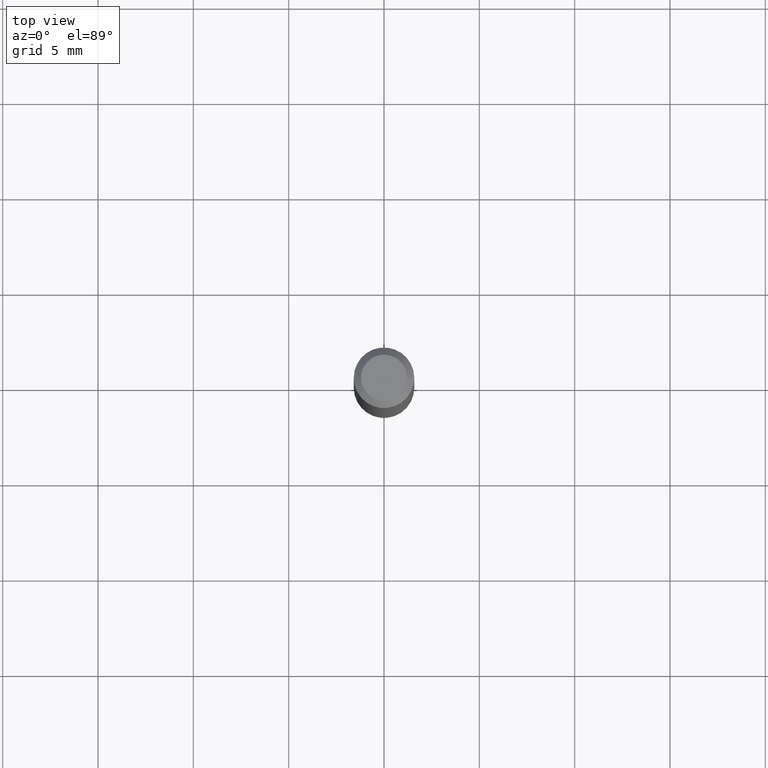
[diagram: clean part render]
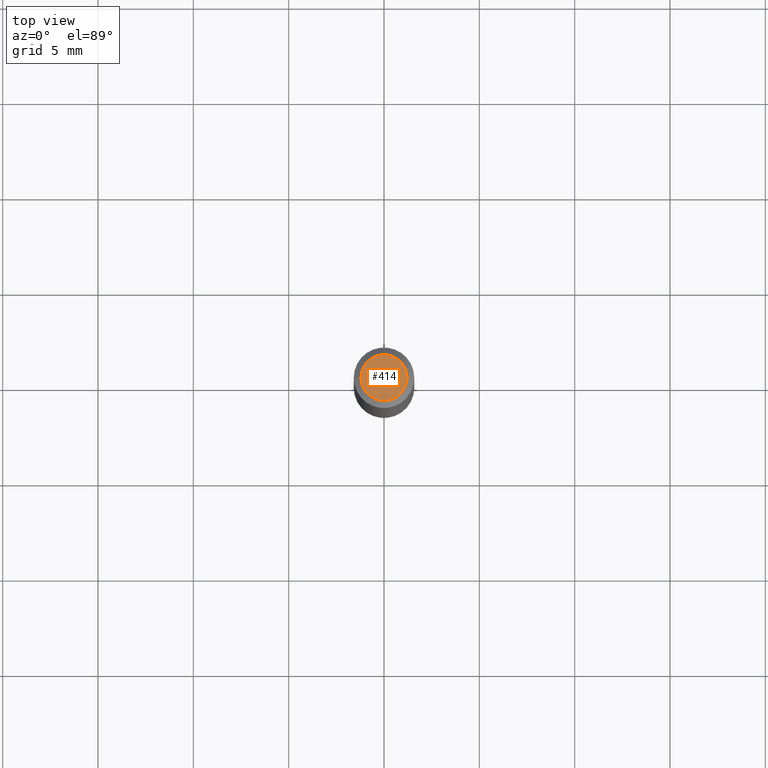
[diagram: same view with one face highlighted and labeled with its STEP entity id]
A machine part, top view. The second image highlights one B-rep face of the part: STEP entity #414.
In plain terms, the highlighted planar face has unit normal (0, -0, -1).
Its self-contained STEP definition (entity closure, byte-faithful):
#4 = VERTEX_POINT ( 'NONE', #187 ) ;
#33 = CARTESIAN_POINT ( 'NONE',  ( 6.093689898318465335E-45, -8.700174179635472181E-31, -2.491828921680032634E-16 ) ) ;
#50 = CIRCLE ( 'NONE', #318, 0.04749999999999999362 ) ;
#52 = CIRCLE ( 'NONE', #392, 0.04749999999999999362 ) ;
#72 = DIRECTION ( 'NONE',  ( -1.000000000000000000, 6.982962677686265922E-15, -4.876176775795935793E-29 ) ) ;
#101 = CARTESIAN_POINT ( 'NONE',  ( 6.093689898318465335E-45, -8.700174179635472181E-31, -2.491828921680032634E-16 ) ) ;
#105 = DIRECTION ( 'NONE',  ( -2.445468806185136597E-29, 3.491481338843145583E-15, 1.000000000000000000 ) ) ;
#114 = AXIS2_PLACEMENT_3D ( 'NONE', #433, #206, #72 ) ;
#140 = FACE_OUTER_BOUND ( 'NONE', #424, .T. ) ;
#178 = ORIENTED_EDGE ( 'NONE', *, *, #380, .T. ) ;
#187 = CARTESIAN_POINT ( 'NONE',  ( -0.04749999999999999362, 3.578768372314206562E-16, -2.491828921680056300E-16 ) ) ;
#195 = ORIENTED_EDGE ( 'NONE', *, *, #305, .T. ) ;
#206 = DIRECTION ( 'NONE',  ( 2.438088387897960049E-29, -3.491481338843145188E-15, -1.000000000000000000 ) ) ;
#249 = DIRECTION ( 'NONE',  ( 1.000000000000000000, -6.982962677686267499E-15, 4.852736867747366768E-29 ) ) ;
#288 = VERTEX_POINT ( 'NONE', #321 ) ;
#290 = PLANE ( 'NONE',  #114 ) ;
#305 = EDGE_CURVE ( 'NONE', #288, #4, #50, .T. ) ;
#318 = AXIS2_PLACEMENT_3D ( 'NONE', #101, #105, #249 ) ;
#321 = CARTESIAN_POINT ( 'NONE',  ( 0.04749999999999999362, -4.035134999187582567E-16, -2.491828921680006996E-16 ) ) ;
#380 = EDGE_CURVE ( 'NONE', #4, #288, #52, .T. ) ;
#392 = AXIS2_PLACEMENT_3D ( 'NONE', #33, #423, #435 ) ;
#414 = ADVANCED_FACE ( 'NONE', ( #140 ), #290, .F. ) ;
#423 = DIRECTION ( 'NONE',  ( -2.445468806185136597E-29, 3.491481338843145583E-15, 1.000000000000000000 ) ) ;
#424 = EDGE_LOOP ( 'NONE', ( #178, #195 ) ) ;
#433 = CARTESIAN_POINT ( 'NONE',  ( 3.316907271900976096E-16, 0.04749999999999999362, -2.904368096790510281E-16 ) ) ;
#435 = DIRECTION ( 'NONE',  ( 1.000000000000000000, -6.982962677686267499E-15, 4.852736867747366768E-29 ) ) ;